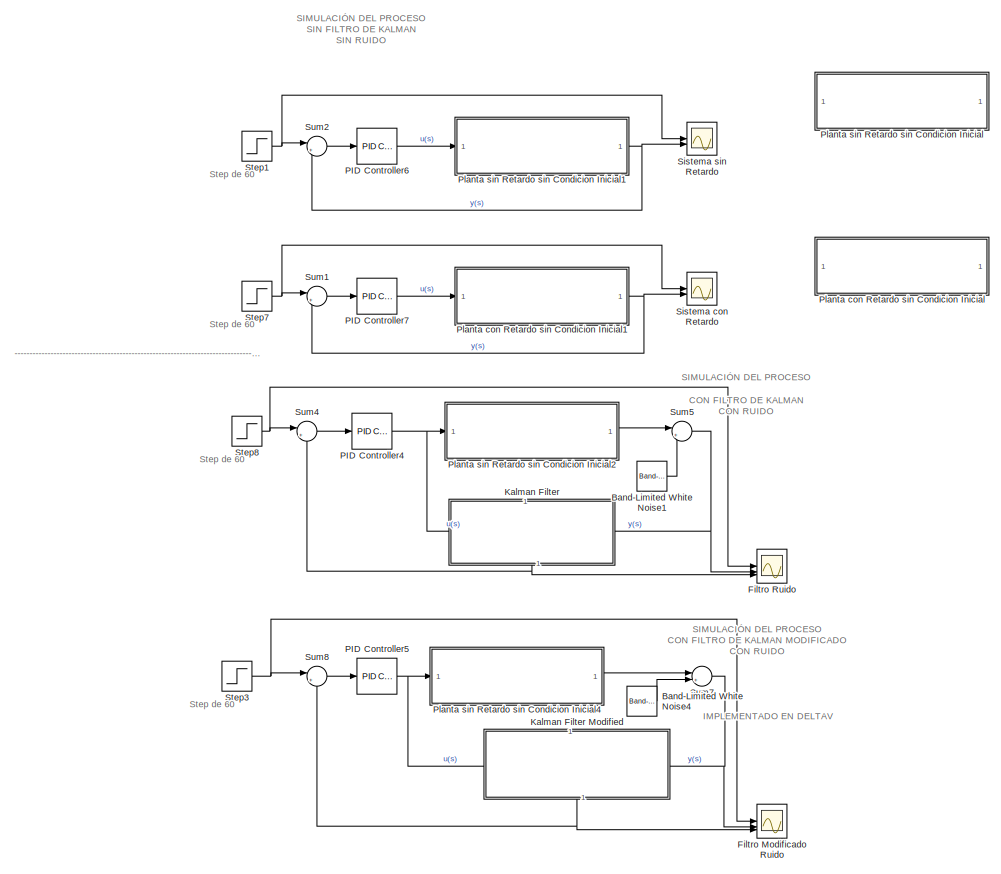
[diagram: root canvas - part 1/2, left side, full height]
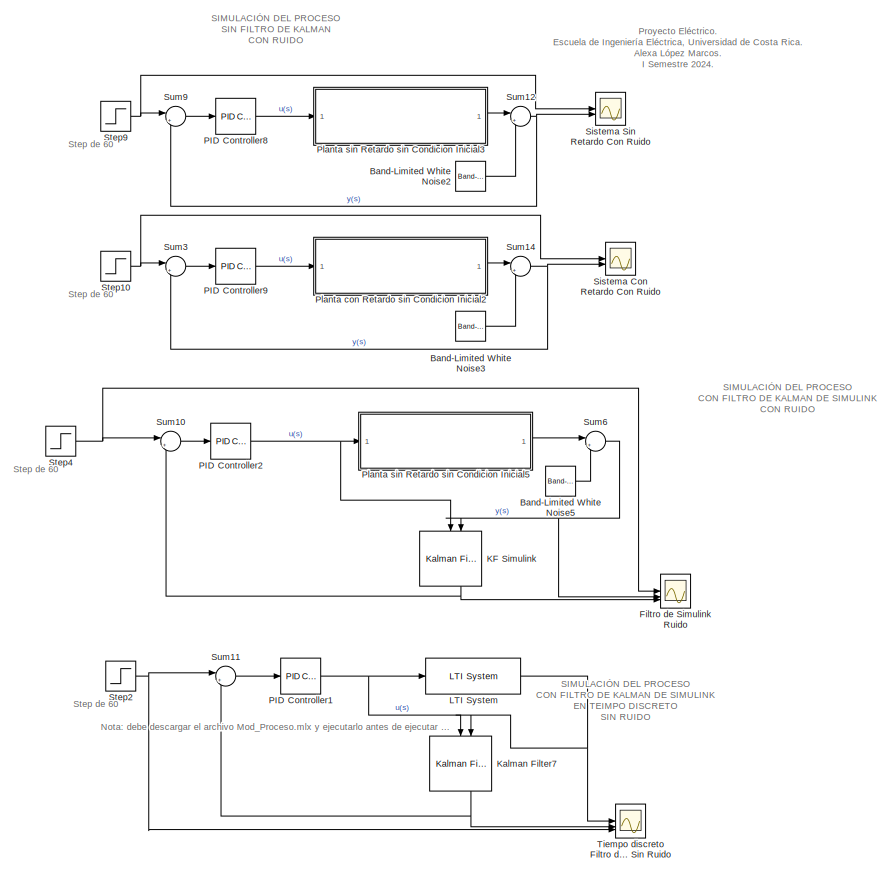
[diagram: root canvas - part 2/2, right side, full height]
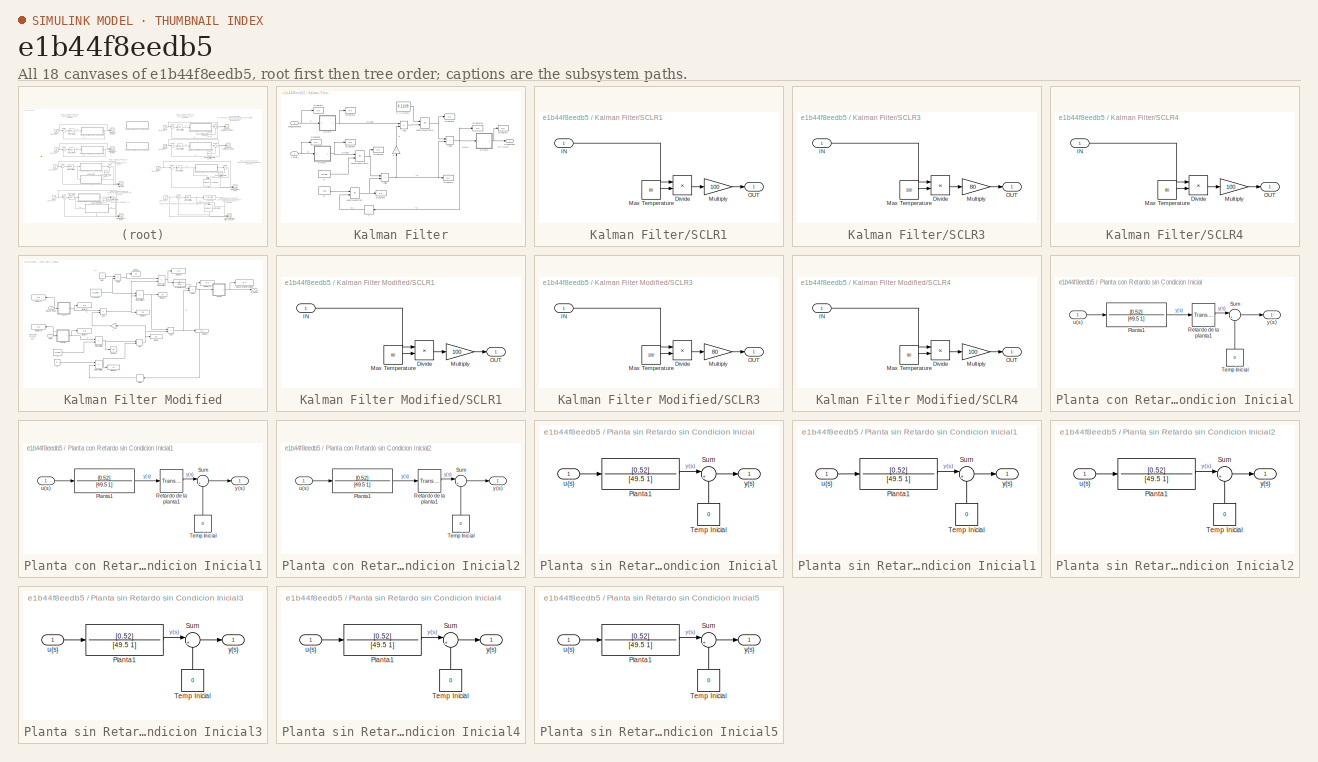
[diagram: thumbnail index - all 18 canvases of the model, root first then tree order]
MODEL slx_e1b44f8eedb5
KIND model
CONFIG AbsTol = auto
CONFIG EnableMultiTasking = off
CONFIG FixedStep = auto
CONFIG MaxStep = auto
CONFIG MinStep = auto
CONFIG RelTol = 1e-3
CONFIG SampleTimeConstraint = Unconstrained
CONFIG SolverName = VariableStepAuto
CONFIG StartTime = 0.0
CONFIG StopTime = 1080
BLOCK [Reference] Band-Limited White Noise1  REF=simulink/Sources/Band-Limited
White Noise
  SourceBlock = simulink/Sources/Band-Limited\nWhite Noise
  SourceType = Band-Limited White Noise.
BLOCK [Reference] Band-Limited White Noise2  REF=simulink/Sources/Band-Limited
White Noise
  SourceBlock = simulink/Sources/Band-Limited\nWhite Noise
  SourceType = Band-Limited White Noise.
BLOCK [Reference] Band-Limited White Noise3  REF=simulink/Sources/Band-Limited
White Noise
  SourceBlock = simulink/Sources/Band-Limited\nWhite Noise
  SourceType = Band-Limited White Noise.
BLOCK [Reference] Band-Limited White Noise4  REF=simulink/Sources/Band-Limited
White Noise
  SourceBlock = simulink/Sources/Band-Limited\nWhite Noise
  SourceType = Band-Limited White Noise.
BLOCK [Reference] Band-Limited White Noise5  REF=simulink/Sources/Band-Limited
White Noise
  SourceBlock = simulink/Sources/Band-Limited\nWhite Noise
  SourceType = Band-Limited White Noise.
BLOCK [Scope] Filtro Modificado Ruido
  Floating = off
  NumInputPorts = 3
  ScopeSpecificationString = Simulink.scopes.TimeScopeBlockCfg('CurrentConfiguration', extmgr.ConfigurationSet(extmgr.Configuration('Core','General UI',true,'FigureColor',[1 1 1]),extmgr.Configuration('Core','Source UI',true),extmgr.Configuration('Sources','WiredSimulink',true,'DataLoggingVariableName','ScopeData4'),extmgr.Configuration('Visuals','Time Domain',true,'SerializedDisplays',{struct('MinYLimReal','-11.81802','MaxYL...<+1864ch>
BLOCK [Scope] Filtro Ruido
  Floating = off
  NumInputPorts = 3
  ScopeSpecificationString = Simulink.scopes.TimeScopeBlockCfg('CurrentConfiguration', extmgr.ConfigurationSet(extmgr.Configuration('Core','General UI',true,'FigureColor',[1 1 1]),extmgr.Configuration('Core','Source UI',true),extmgr.Configuration('Sources','WiredSimulink',true),extmgr.Configuration('Visuals','Time Domain',true,'SerializedDisplays',{struct('MinYLimReal','-11.62962','MaxYLimReal','68.63877','YLabelReal','','Min...<+1803ch>
BLOCK [Scope] Filtro de Simulink Ruido
  Floating = off
  NumInputPorts = 3
  ScopeSpecificationString = Simulink.scopes.TimeScopeBlockCfg('CurrentConfiguration', extmgr.ConfigurationSet(extmgr.Configuration('Core','General UI',true,'FigureColor',[1 1 1]),extmgr.Configuration('Core','Source UI',true),extmgr.Configuration('Sources','WiredSimulink',true,'DataLoggingVariableName','ScopeData4'),extmgr.Configuration('Visuals','Time Domain',true,'SerializedDisplays',{struct('MinYLimReal','-13.6658','MaxYLi...<+1741ch>
BLOCK [Reference] KF Simulink  REF=ctrlSharedLib/Kalman Filter
  LibrarySourceBlock = cstblocks/State Estimation/Kalman Filter
  NameLocation = left
  SourceBlock = ctrlSharedLib/Kalman Filter
  SourceType = ctrlKalmanFilter
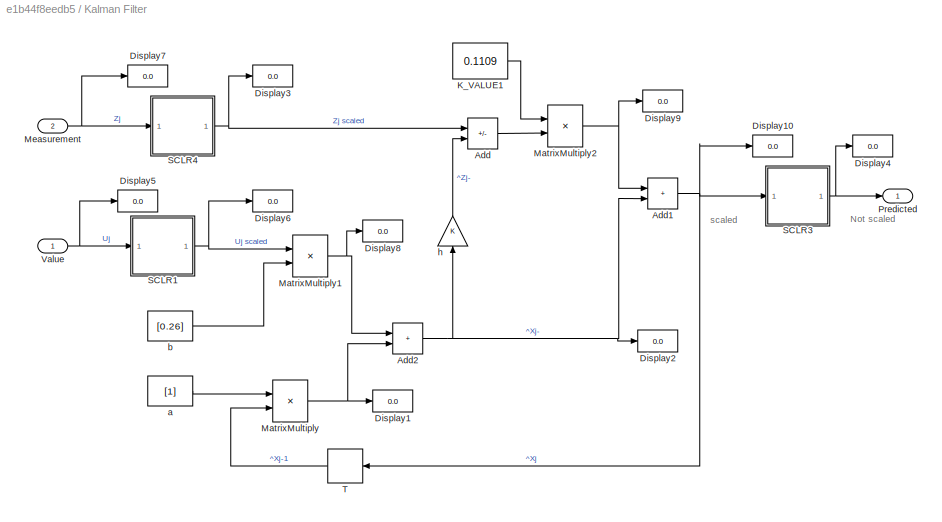
BLOCK [SubSystem] Kalman Filter
  NameLocation = left
  PortSchema = {"entries":[{"content":{"sides":[{"content":{},"type":"ConnectorPlacement.EquallySpacedRectSide","uuid":"d3a60f0c-3c6b-4e21-88ea-bc45be9027c1"},{"content":{"connectorIds":["Out1"],"side":"RIGHT"},"type":"ConnectorPlacement.EquallySpacedRectSide","uuid":"5ceb9a3c-e24d-4769-ae0e-5938e232892d"},{"content":{"connectorIds":["In1"],"side":"TOP"},"type":"ConnectorPlacement.EquallySpacedRectSide","uuid":"...<+372ch>
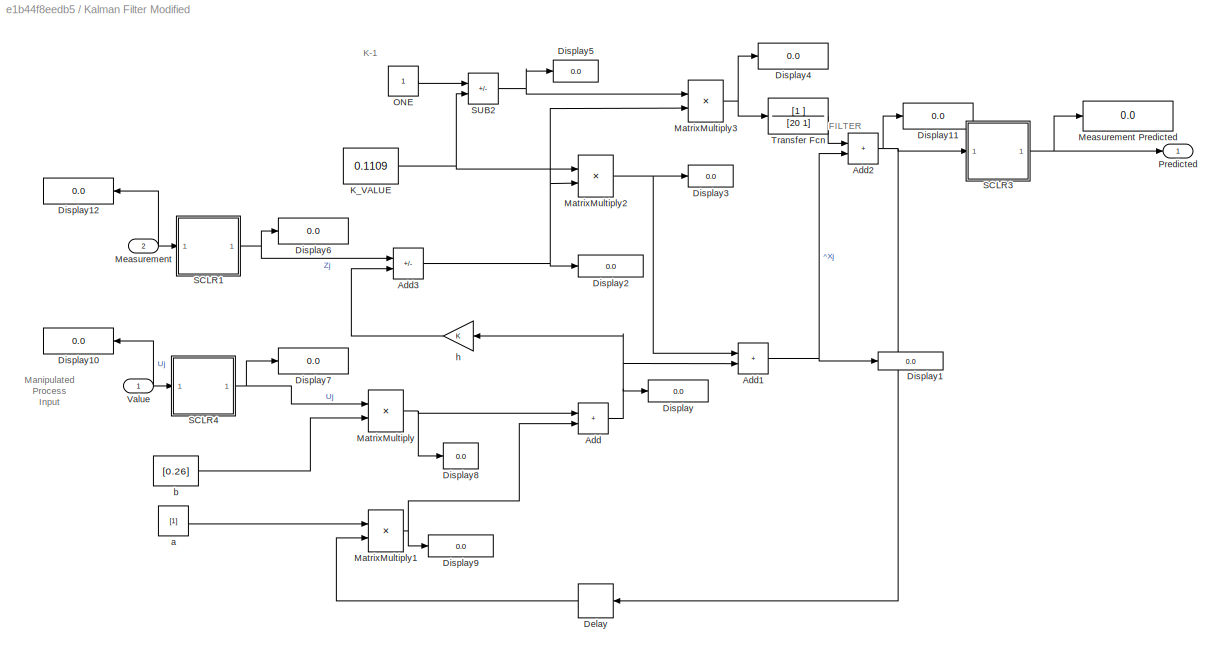
BLOCK [SubSystem] Kalman Filter Modified
  NameLocation = left
  PortSchema = {"entries":[{"content":{"sides":[{"content":{},"type":"ConnectorPlacement.EquallySpacedRectSide","uuid":"d3a60f0c-3c6b-4e21-88ea-bc45be9027c1"},{"content":{"connectorIds":["Out1"],"side":"RIGHT"},"type":"ConnectorPlacement.EquallySpacedRectSide","uuid":"5ceb9a3c-e24d-4769-ae0e-5938e232892d"},{"content":{"connectorIds":["In1"],"side":"TOP"},"type":"ConnectorPlacement.EquallySpacedRectSide","uuid":"...<+372ch>
BLOCK [Display] Kalman Filter Modified/ Measurement Predicted
  Decimation = 1
BLOCK [Sum] Kalman Filter Modified/Add
  IconShape = rectangular
BLOCK [Sum] Kalman Filter Modified/Add1
  IconShape = rectangular
BLOCK [Sum] Kalman Filter Modified/Add2
  IconShape = rectangular
BLOCK [Sum] Kalman Filter Modified/Add3
  IconShape = rectangular
  Inputs = +-
BLOCK [Delay] Kalman Filter Modified/Delay
  DelayLength = 1
  InputPortMap = u0
  NameLocation = top
BLOCK [Display] Kalman Filter Modified/Display
  Decimation = 1
BLOCK [Display] Kalman Filter Modified/Display1
  Decimation = 1
BLOCK [Display] Kalman Filter Modified/Display10
  Decimation = 1
  NameLocation = top
BLOCK [Display] Kalman Filter Modified/Display11
  Decimation = 1
BLOCK [Display] Kalman Filter Modified/Display12
  Decimation = 1
  NameLocation = top
BLOCK [Display] Kalman Filter Modified/Display2
  Decimation = 1
BLOCK [Display] Kalman Filter Modified/Display3
  Decimation = 1
BLOCK [Display] Kalman Filter Modified/Display4
  Decimation = 1
BLOCK [Display] Kalman Filter Modified/Display5
  Decimation = 1
BLOCK [Display] Kalman Filter Modified/Display6
  Decimation = 1
BLOCK [Display] Kalman Filter Modified/Display7
  Decimation = 1
BLOCK [Display] Kalman Filter Modified/Display8
  Decimation = 1
BLOCK [Display] Kalman Filter Modified/Display9
  Decimation = 1
BLOCK [Constant] Kalman Filter Modified/K_VALUE
  Value = 0.1109
BLOCK [Product] Kalman Filter Modified/MatrixMultiply
  Multiplication = Matrix(*)
BLOCK [Product] Kalman Filter Modified/MatrixMultiply1
  Multiplication = Matrix(*)
BLOCK [Product] Kalman Filter Modified/MatrixMultiply2
  Multiplication = Matrix(*)
BLOCK [Product] Kalman Filter Modified/MatrixMultiply3
  Multiplication = Matrix(*)
BLOCK [Inport] Kalman Filter Modified/Measurement
  Port = 2
BLOCK [Constant] Kalman Filter Modified/ONE
BLOCK [Outport] Kalman Filter Modified/Predicted
BLOCK [SubSystem] Kalman Filter Modified/SCLR1
BLOCK [Product] Kalman Filter Modified/SCLR1/Divide
  Inputs = */
BLOCK [Inport] Kalman Filter Modified/SCLR1/IN
BLOCK [Constant] Kalman Filter Modified/SCLR1/Max Temperature
  Value = 80
BLOCK [Gain] Kalman Filter Modified/SCLR1/Multiply
  Gain = 100
BLOCK [Outport] Kalman Filter Modified/SCLR1/OUT
BLOCK [SubSystem] Kalman Filter Modified/SCLR3
BLOCK [Product] Kalman Filter Modified/SCLR3/Divide
  Inputs = */
BLOCK [Inport] Kalman Filter Modified/SCLR3/IN
BLOCK [Constant] Kalman Filter Modified/SCLR3/Max Temperature
  Value = 100
BLOCK [Gain] Kalman Filter Modified/SCLR3/Multiply
  Gain = 80
BLOCK [Outport] Kalman Filter Modified/SCLR3/OUT
BLOCK [SubSystem] Kalman Filter Modified/SCLR4
BLOCK [Product] Kalman Filter Modified/SCLR4/Divide
  Inputs = */
BLOCK [Inport] Kalman Filter Modified/SCLR4/IN
BLOCK [Constant] Kalman Filter Modified/SCLR4/Max Temperature
  Value = 80
BLOCK [Gain] Kalman Filter Modified/SCLR4/Multiply
  Gain = 100
BLOCK [Outport] Kalman Filter Modified/SCLR4/OUT
BLOCK [Sum] Kalman Filter Modified/SUB2
  IconShape = rectangular
  Inputs = +-
BLOCK [TransferFcn] Kalman Filter Modified/Transfer Fcn
  Denominator = [20 1]
  Numerator = [1 ]
BLOCK [Inport] Kalman Filter Modified/Value
BLOCK [Constant] Kalman Filter Modified/a
  Value = [1]
BLOCK [Constant] Kalman Filter Modified/b
  Value = [0.26]
BLOCK [Gain] Kalman Filter Modified/h
  NameLocation = top
BLOCK [Sum] Kalman Filter/Add
  IconShape = rectangular
  Inputs = +-
BLOCK [Sum] Kalman Filter/Add1
  IconShape = rectangular
BLOCK [Sum] Kalman Filter/Add2
  IconShape = rectangular
BLOCK [Display] Kalman Filter/Display1
  Decimation = 1
BLOCK [Display] Kalman Filter/Display10
  Decimation = 1
BLOCK [Display] Kalman Filter/Display2
  Decimation = 1
BLOCK [Display] Kalman Filter/Display3
  Decimation = 1
BLOCK [Display] Kalman Filter/Display4
  Decimation = 1
BLOCK [Display] Kalman Filter/Display5
  Decimation = 1
BLOCK [Display] Kalman Filter/Display6
  Decimation = 1
BLOCK [Display] Kalman Filter/Display7
  Decimation = 1
BLOCK [Display] Kalman Filter/Display8
  Decimation = 1
BLOCK [Display] Kalman Filter/Display9
  Decimation = 1
BLOCK [Constant] Kalman Filter/K_VALUE1
  Value = 0.1109
BLOCK [Product] Kalman Filter/MatrixMultiply
  Multiplication = Matrix(*)
BLOCK [Product] Kalman Filter/MatrixMultiply1
  Multiplication = Matrix(*)
BLOCK [Product] Kalman Filter/MatrixMultiply2
  Multiplication = Matrix(*)
BLOCK [Inport] Kalman Filter/Measurement
  Port = 2
BLOCK [Outport] Kalman Filter/Predicted
BLOCK [SubSystem] Kalman Filter/SCLR1
BLOCK [Product] Kalman Filter/SCLR1/Divide
  Inputs = */
BLOCK [Inport] Kalman Filter/SCLR1/IN
BLOCK [Constant] Kalman Filter/SCLR1/Max Temperature
  Value = 80
BLOCK [Gain] Kalman Filter/SCLR1/Multiply
  Gain = 100
BLOCK [Outport] Kalman Filter/SCLR1/OUT
BLOCK [SubSystem] Kalman Filter/SCLR3
BLOCK [Product] Kalman Filter/SCLR3/Divide
  Inputs = */
BLOCK [Inport] Kalman Filter/SCLR3/IN
BLOCK [Constant] Kalman Filter/SCLR3/Max Temperature
  Value = 100
BLOCK [Gain] Kalman Filter/SCLR3/Multiply
  Gain = 80
BLOCK [Outport] Kalman Filter/SCLR3/OUT
BLOCK [SubSystem] Kalman Filter/SCLR4
BLOCK [Product] Kalman Filter/SCLR4/Divide
  Inputs = */
BLOCK [Inport] Kalman Filter/SCLR4/IN
BLOCK [Constant] Kalman Filter/SCLR4/Max Temperature
  Value = 80
BLOCK [Gain] Kalman Filter/SCLR4/Multiply
  Gain = 100
BLOCK [Outport] Kalman Filter/SCLR4/OUT
BLOCK [Delay] Kalman Filter/T
  DelayLength = 1
  InputPortMap = u0
  NameLocation = top
BLOCK [Inport] Kalman Filter/Value
BLOCK [Constant] Kalman Filter/a
  Value = [1]
BLOCK [Constant] Kalman Filter/b
  Value = [0.26]
BLOCK [Gain] Kalman Filter/h
  NameLocation = right
BLOCK [Reference] Kalman Filter7  REF=ctrlSharedLib/Kalman Filter
  Commented = on
  LibrarySourceBlock = cstblocks/State Estimation/Kalman Filter
  NameLocation = left
  SourceBlock = ctrlSharedLib/Kalman Filter
  SourceType = ctrlKalmanFilter
BLOCK [Reference] LTI System  REF=cstblocks/LTI System
  Commented = on
  SourceBlock = cstblocks/LTI System
  SourceType = LTI Block
BLOCK [Reference] PID Controller1  REF=slpidlib/PID Controller
  Commented = on
  LibrarySourceBlock = simulink/Continuous/PID Controller
  SourceBlock = slpidlib/PID Controller
  SourceType = PID 1dof
BLOCK [Reference] PID Controller2  REF=slpidlib/PID Controller
  LibrarySourceBlock = simulink/Continuous/PID Controller
  SourceBlock = slpidlib/PID Controller
  SourceType = PID 1dof
BLOCK [Reference] PID Controller4  REF=slpidlib/PID Controller
  LibrarySourceBlock = simulink/Continuous/PID Controller
  SourceBlock = slpidlib/PID Controller
  SourceType = PID 1dof
BLOCK [Reference] PID Controller5  REF=slpidlib/PID Controller
  LibrarySourceBlock = simulink/Continuous/PID Controller
  SourceBlock = slpidlib/PID Controller
  SourceType = PID 1dof
BLOCK [Reference] PID Controller6  REF=slpidlib/PID Controller
  LibrarySourceBlock = simulink/Continuous/PID Controller
  SourceBlock = slpidlib/PID Controller
  SourceType = PID 1dof
BLOCK [Reference] PID Controller7  REF=slpidlib/PID Controller
  LibrarySourceBlock = simulink/Continuous/PID Controller
  SourceBlock = slpidlib/PID Controller
  SourceType = PID 1dof
BLOCK [Reference] PID Controller8  REF=slpidlib/PID Controller
  LibrarySourceBlock = simulink/Continuous/PID Controller
  SourceBlock = slpidlib/PID Controller
  SourceType = PID 1dof
BLOCK [Reference] PID Controller9  REF=slpidlib/PID Controller
  LibrarySourceBlock = simulink/Continuous/PID Controller
  SourceBlock = slpidlib/PID Controller
  SourceType = PID 1dof
BLOCK [SubSystem] Planta con Retardo sin Condicion Inicial
BLOCK [TransferFcn] Planta con Retardo sin Condicion Inicial/Planta1
  Denominator = [49.5 1]
  Numerator = [0.52]
BLOCK [TransportDelay] Planta con Retardo sin Condicion Inicial/Retardo de la planta1
  DelayTime = 129
BLOCK [Sum] Planta con Retardo sin Condicion Inicial/Sum
  Inputs = |++
BLOCK [Constant] Planta con Retardo sin Condicion Inicial/Temp Inicial
  NameLocation = right
  Value = 0
BLOCK [Inport] Planta con Retardo sin Condicion Inicial/u(s)
BLOCK [Outport] Planta con Retardo sin Condicion Inicial/y(s)
  NameLocation = top
BLOCK [SubSystem] Planta con Retardo sin Condicion Inicial1
BLOCK [TransferFcn] Planta con Retardo sin Condicion Inicial1/Planta1
  Denominator = [49.5 1]
  Numerator = [0.52]
BLOCK [TransportDelay] Planta con Retardo sin Condicion Inicial1/Retardo de la planta1
  DelayTime = 129
BLOCK [Sum] Planta con Retardo sin Condicion Inicial1/Sum
  Inputs = |++
BLOCK [Constant] Planta con Retardo sin Condicion Inicial1/Temp Inicial
  NameLocation = right
  Value = 0
BLOCK [Inport] Planta con Retardo sin Condicion Inicial1/u(s)
BLOCK [Outport] Planta con Retardo sin Condicion Inicial1/y(s)
  NameLocation = top
BLOCK [SubSystem] Planta con Retardo sin Condicion Inicial2
BLOCK [TransferFcn] Planta con Retardo sin Condicion Inicial2/Planta1
  Denominator = [49.5 1]
  Numerator = [0.52]
BLOCK [TransportDelay] Planta con Retardo sin Condicion Inicial2/Retardo de la planta1
  DelayTime = 129
BLOCK [Sum] Planta con Retardo sin Condicion Inicial2/Sum
  Inputs = |++
BLOCK [Constant] Planta con Retardo sin Condicion Inicial2/Temp Inicial
  NameLocation = right
  Value = 0
BLOCK [Inport] Planta con Retardo sin Condicion Inicial2/u(s)
BLOCK [Outport] Planta con Retardo sin Condicion Inicial2/y(s)
  NameLocation = top
BLOCK [SubSystem] Planta sin Retardo sin Condicion Inicial
BLOCK [TransferFcn] Planta sin Retardo sin Condicion Inicial/Planta1
  Denominator = [49.5 1]
  Numerator = [0.52]
BLOCK [Sum] Planta sin Retardo sin Condicion Inicial/Sum
  Inputs = |++
BLOCK [Constant] Planta sin Retardo sin Condicion Inicial/Temp Inicial
  NameLocation = right
  Value = 0
BLOCK [Inport] Planta sin Retardo sin Condicion Inicial/u(s)
BLOCK [Outport] Planta sin Retardo sin Condicion Inicial/y(s)
  NameLocation = top
BLOCK [SubSystem] Planta sin Retardo sin Condicion Inicial1
BLOCK [TransferFcn] Planta sin Retardo sin Condicion Inicial1/Planta1
  Denominator = [49.5 1]
  Numerator = [0.52]
BLOCK [Sum] Planta sin Retardo sin Condicion Inicial1/Sum
  Inputs = |++
BLOCK [Constant] Planta sin Retardo sin Condicion Inicial1/Temp Inicial
  NameLocation = right
  Value = 0
BLOCK [Inport] Planta sin Retardo sin Condicion Inicial1/u(s)
BLOCK [Outport] Planta sin Retardo sin Condicion Inicial1/y(s)
  NameLocation = top
BLOCK [SubSystem] Planta sin Retardo sin Condicion Inicial2
BLOCK [TransferFcn] Planta sin Retardo sin Condicion Inicial2/Planta1
  Denominator = [49.5 1]
  Numerator = [0.52]
BLOCK [Sum] Planta sin Retardo sin Condicion Inicial2/Sum
  Inputs = |++
BLOCK [Constant] Planta sin Retardo sin Condicion Inicial2/Temp Inicial
  NameLocation = right
  Value = 0
BLOCK [Inport] Planta sin Retardo sin Condicion Inicial2/u(s)
BLOCK [Outport] Planta sin Retardo sin Condicion Inicial2/y(s)
  NameLocation = top
BLOCK [SubSystem] Planta sin Retardo sin Condicion Inicial3
BLOCK [TransferFcn] Planta sin Retardo sin Condicion Inicial3/Planta1
  Denominator = [49.5 1]
  Numerator = [0.52]
BLOCK [Sum] Planta sin Retardo sin Condicion Inicial3/Sum
  Inputs = |++
BLOCK [Constant] Planta sin Retardo sin Condicion Inicial3/Temp Inicial
  NameLocation = right
  Value = 0
BLOCK [Inport] Planta sin Retardo sin Condicion Inicial3/u(s)
BLOCK [Outport] Planta sin Retardo sin Condicion Inicial3/y(s)
  NameLocation = top
BLOCK [SubSystem] Planta sin Retardo sin Condicion Inicial4
BLOCK [TransferFcn] Planta sin Retardo sin Condicion Inicial4/Planta1
  Denominator = [49.5 1]
  Numerator = [0.52]
BLOCK [Sum] Planta sin Retardo sin Condicion Inicial4/Sum
  Inputs = |++
BLOCK [Constant] Planta sin Retardo sin Condicion Inicial4/Temp Inicial
  NameLocation = right
  Value = 0
BLOCK [Inport] Planta sin Retardo sin Condicion Inicial4/u(s)
BLOCK [Outport] Planta sin Retardo sin Condicion Inicial4/y(s)
  NameLocation = top
BLOCK [SubSystem] Planta sin Retardo sin Condicion Inicial5
BLOCK [TransferFcn] Planta sin Retardo sin Condicion Inicial5/Planta1
  Denominator = [49.5 1]
  Numerator = [0.52]
BLOCK [Sum] Planta sin Retardo sin Condicion Inicial5/Sum
  Inputs = |++
BLOCK [Constant] Planta sin Retardo sin Condicion Inicial5/Temp Inicial
  NameLocation = right
  Value = 0
BLOCK [Inport] Planta sin Retardo sin Condicion Inicial5/u(s)
BLOCK [Outport] Planta sin Retardo sin Condicion Inicial5/y(s)
  NameLocation = top
BLOCK [Scope] Sistema Con Retardo Con Ruido
  Floating = off
  NumInputPorts = 2
  ScopeSpecificationString = Simulink.scopes.TimeScopeBlockCfg('CurrentConfiguration', extmgr.ConfigurationSet(extmgr.Configuration('Core','General UI',true,'FigureColor',[1 1 1]),extmgr.Configuration('Core','Source UI',true),extmgr.Configuration('Sources','WiredSimulink',true,'DataLoggingVariableName','ScopeData6'),extmgr.Configuration('Visuals','Time Domain',true,'SerializedDisplays',{struct('MinYLimReal','-12.41225','MaxYL...<+1682ch>
BLOCK [Scope] Sistema Sin Retardo Con Ruido
  Floating = off
  NumInputPorts = 2
  ScopeSpecificationString = Simulink.scopes.TimeScopeBlockCfg('CurrentConfiguration', extmgr.ConfigurationSet(extmgr.Configuration('Core','General UI',true,'FigureColor',[1 1 1]),extmgr.Configuration('Core','Source UI',true),extmgr.Configuration('Sources','WiredSimulink',true,'DataLoggingVariableName','ScopeData7'),extmgr.Configuration('Visuals','Time Domain',true,'SerializedDisplays',{struct('MinYLimReal','-7.5','MaxYLimRea...<+1657ch>
BLOCK [Scope] Sistema con Retardo
  Floating = off
  NumInputPorts = 2
  ScopeSpecificationString = Simulink.scopes.TimeScopeBlockCfg('CurrentConfiguration', extmgr.ConfigurationSet(extmgr.Configuration('Core','General UI',true,'FigureColor',[1 1 1]),extmgr.Configuration('Core','Source UI',true),extmgr.Configuration('Sources','WiredSimulink',true,'DataLoggingVariableName','ScopeData5'),extmgr.Configuration('Visuals','Time Domain',true,'SerializedDisplays',{struct('MinYLimReal','-7.5','MaxYLimRea...<+1657ch>
BLOCK [Scope] Sistema sin Retardo
  Floating = off
  NumInputPorts = 2
  ScopeSpecificationString = Simulink.scopes.TimeScopeBlockCfg('CurrentConfiguration', extmgr.ConfigurationSet(extmgr.Configuration('Core','General UI',true,'FigureColor',[1 1 1]),extmgr.Configuration('Core','Source UI',true),extmgr.Configuration('Sources','WiredSimulink',true,'DataLoggingVariableName','ScopeData2'),extmgr.Configuration('Visuals','Time Domain',true,'SerializedDisplays',{struct('MinYLimReal','-7.5','MaxYLimRea...<+1681ch>
BLOCK [Step] Step1
  After = 60
  SampleTime = 0
  Time = 100
BLOCK [Step] Step10
  After = 60
  SampleTime = 0
  Time = 100
BLOCK [Step] Step2
  After = 60
  Commented = on
  SampleTime = 0
  Time = 100
BLOCK [Step] Step3
  After = 60
  SampleTime = 0
  Time = 100
BLOCK [Step] Step4
  After = 60
  SampleTime = 0
  Time = 100
BLOCK [Step] Step7
  After = 60
  SampleTime = 0
  Time = 100
BLOCK [Step] Step8
  After = 60
  SampleTime = 0
  Time = 100
BLOCK [Step] Step9
  After = 60
  SampleTime = 0
  Time = 100
BLOCK [Sum] Sum1
  Inputs = |+-
BLOCK [Sum] Sum10
  Inputs = |+-
BLOCK [Sum] Sum11
  Commented = on
  Inputs = |+-
BLOCK [Sum] Sum12
  Inputs = |++
BLOCK [Sum] Sum14
  Inputs = |++
BLOCK [Sum] Sum2
  Inputs = |+-
BLOCK [Sum] Sum3
  Inputs = |+-
BLOCK [Sum] Sum4
  Inputs = |+-
BLOCK [Sum] Sum5
  Inputs = |++
BLOCK [Sum] Sum6
  Inputs = |++
BLOCK [Sum] Sum7
  Inputs = |++
BLOCK [Sum] Sum8
  Inputs = |+-
BLOCK [Sum] Sum9
  Inputs = |+-
BLOCK [Scope] Tiempo discreto Filtro de Simulink Sin Ruido
  Commented = on
  Floating = off
  NumInputPorts = 3
  ScopeSpecificationString = Simulink.scopes.TimeScopeBlockCfg('CurrentConfiguration', extmgr.ConfigurationSet(extmgr.Configuration('Core','General UI',true,'FigureColor',[1 1 1]),extmgr.Configuration('Core','Source UI',true),extmgr.Configuration('Sources','WiredSimulink',true,'DataLoggingVariableName','ScopeData2'),extmgr.Configuration('Visuals','Time Domain',true,'SerializedDisplays',{struct('MinYLimReal','-7.5','MaxYLimRea...<+1726ch>
ANNOTATION (root): IMPLEMENTADO EN DELTAV
ANNOTATION (root): SIMULACIÓN DEL PROCESO CON FILTRO DE KALMAN DE SIMULINK CON RUIDO
ANNOTATION (root): SIMULACIÓN DEL PROCESO CON FILTRO DE KALMAN DE SIMULINK EN TEIMPO DISCRETO SIN RUIDO
ANNOTATION (root): SIMULACIÓN DEL PROCESO CON FILTRO DE KALMAN MODIFICADO CON RUIDO
ANNOTATION (root): SIMULACIÓN DEL PROCESO CON FILTRO DE KALMAN CON RUIDO
ANNOTATION (root): SIMULACIÓN DEL PROCESO SIN FILTRO DE KALMAN CON RUIDO
ANNOTATION (root): SIMULACIÓN DEL PROCESO SIN FILTRO DE KALMAN SIN RUIDO
ANNOTATION (root): ----------------------------------------------------------------------------------------------------------------------------------------------------------------------------------------------------------------------------------------
ANNOTATION (root): Proyecto Eléctrico. Escuela de Ingeniería Eléctrica, Universidad de Costa Rica. Alexa López Marcos. I Semestre 2024.
ANNOTATION (root): Nota: debe descargar el archivo Mod_Proceso.mlx y ejecutarlo antes de ejecutar esta simulacion
ANNOTATION (root): Step de 60
ANNOTATION Kalman Filter: Not scaled
ANNOTATION Kalman Filter: scaled
ANNOTATION Kalman Filter Modified: FILTER
ANNOTATION Kalman Filter Modified: K-1
ANNOTATION Kalman Filter Modified: Manipulated Process Input
LINE Band-Limited White Noise1:1 -> Sum5:2
LINE Band-Limited White Noise2:1 -> Sum12:2
LINE Band-Limited White Noise3:1 -> Sum14:2
LINE Band-Limited White Noise4:1 -> Sum7:2
LINE Band-Limited White Noise5:1 -> Sum6:2
NET KF Simulink:2 -> Filtro de Simulink Ruido:3, Sum10:2
NET Kalman Filter Modified/Add1:1 -> Kalman Filter Modified/Add2:2, Kalman Filter Modified/Display1:1
NET Kalman Filter Modified/Add2:1 -> Kalman Filter Modified/Delay:1, Kalman Filter Modified/Display11:1, Kalman Filter Modified/SCLR3:1
NET Kalman Filter Modified/Add3:1 -> Kalman Filter Modified/Display2:1, Kalman Filter Modified/MatrixMultiply2:2, Kalman Filter Modified/MatrixMultiply3:2
NET Kalman Filter Modified/Add:1 -> Kalman Filter Modified/Add1:2, Kalman Filter Modified/Display:1, Kalman Filter Modified/h:1
LINE Kalman Filter Modified/Delay:1 -> Kalman Filter Modified/MatrixMultiply1:2
NET Kalman Filter Modified/K_VALUE:1 -> Kalman Filter Modified/MatrixMultiply2:1, Kalman Filter Modified/SUB2:2
NET Kalman Filter Modified/MatrixMultiply1:1 -> Kalman Filter Modified/Add:2, Kalman Filter Modified/Display9:1
NET Kalman Filter Modified/MatrixMultiply2:1 -> Kalman Filter Modified/Add1:1, Kalman Filter Modified/Display3:1
NET Kalman Filter Modified/MatrixMultiply3:1 -> Kalman Filter Modified/Display4:1, Kalman Filter Modified/Transfer Fcn:1
NET Kalman Filter Modified/MatrixMultiply:1 -> Kalman Filter Modified/Add:1, Kalman Filter Modified/Display8:1
NET Kalman Filter Modified/Measurement:1 -> Kalman Filter Modified/Display12:1, Kalman Filter Modified/SCLR1:1
LINE Kalman Filter Modified/ONE:1 -> Kalman Filter Modified/SUB2:1
LINE Kalman Filter Modified/SCLR1/Divide:1 -> Kalman Filter Modified/SCLR1/Multiply:1
LINE Kalman Filter Modified/SCLR1/IN:1 -> Kalman Filter Modified/SCLR1/Divide:1
LINE Kalman Filter Modified/SCLR1/Max Temperature:1 -> Kalman Filter Modified/SCLR1/Divide:2
LINE Kalman Filter Modified/SCLR1/Multiply:1 -> Kalman Filter Modified/SCLR1/OUT:1
NET Kalman Filter Modified/SCLR1:1 -> Kalman Filter Modified/Add3:1, Kalman Filter Modified/Display6:1
LINE Kalman Filter Modified/SCLR3/Divide:1 -> Kalman Filter Modified/SCLR3/Multiply:1
LINE Kalman Filter Modified/SCLR3/IN:1 -> Kalman Filter Modified/SCLR3/Divide:1
LINE Kalman Filter Modified/SCLR3/Max Temperature:1 -> Kalman Filter Modified/SCLR3/Divide:2
LINE Kalman Filter Modified/SCLR3/Multiply:1 -> Kalman Filter Modified/SCLR3/OUT:1
NET Kalman Filter Modified/SCLR3:1 -> Kalman Filter Modified/ Measurement Predicted:1, Kalman Filter Modified/Predicted:1
LINE Kalman Filter Modified/SCLR4/Divide:1 -> Kalman Filter Modified/SCLR4/Multiply:1
LINE Kalman Filter Modified/SCLR4/IN:1 -> Kalman Filter Modified/SCLR4/Divide:1
LINE Kalman Filter Modified/SCLR4/Max Temperature:1 -> Kalman Filter Modified/SCLR4/Divide:2
LINE Kalman Filter Modified/SCLR4/Multiply:1 -> Kalman Filter Modified/SCLR4/OUT:1
NET Kalman Filter Modified/SCLR4:1 -> Kalman Filter Modified/Display7:1, Kalman Filter Modified/MatrixMultiply:1
NET Kalman Filter Modified/SUB2:1 -> Kalman Filter Modified/Display5:1, Kalman Filter Modified/MatrixMultiply3:1
LINE Kalman Filter Modified/Transfer Fcn:1 -> Kalman Filter Modified/Add2:1
NET Kalman Filter Modified/Value:1 -> Kalman Filter Modified/Display10:1, Kalman Filter Modified/SCLR4:1
LINE Kalman Filter Modified/a:1 -> Kalman Filter Modified/MatrixMultiply1:1
LINE Kalman Filter Modified/b:1 -> Kalman Filter Modified/MatrixMultiply:2
LINE Kalman Filter Modified/h:1 -> Kalman Filter Modified/Add3:2
NET Kalman Filter Modified:1 -> Filtro Modificado Ruido:3, Sum8:2
NET Kalman Filter/Add1:1 -> Kalman Filter/Display10:1, Kalman Filter/SCLR3:1, Kalman Filter/T:1
NET Kalman Filter/Add2:1 -> Kalman Filter/Add1:2, Kalman Filter/Display2:1, Kalman Filter/h:1
LINE Kalman Filter/Add:1 -> Kalman Filter/MatrixMultiply2:2
LINE Kalman Filter/K_VALUE1:1 -> Kalman Filter/MatrixMultiply2:1
NET Kalman Filter/MatrixMultiply1:1 -> Kalman Filter/Add2:1, Kalman Filter/Display8:1
NET Kalman Filter/MatrixMultiply2:1 -> Kalman Filter/Add1:1, Kalman Filter/Display9:1
NET Kalman Filter/MatrixMultiply:1 -> Kalman Filter/Add2:2, Kalman Filter/Display1:1
NET Kalman Filter/Measurement:1 -> Kalman Filter/Display7:1, Kalman Filter/SCLR4:1
LINE Kalman Filter/SCLR1/Divide:1 -> Kalman Filter/SCLR1/Multiply:1
LINE Kalman Filter/SCLR1/IN:1 -> Kalman Filter/SCLR1/Divide:1
LINE Kalman Filter/SCLR1/Max Temperature:1 -> Kalman Filter/SCLR1/Divide:2
LINE Kalman Filter/SCLR1/Multiply:1 -> Kalman Filter/SCLR1/OUT:1
NET Kalman Filter/SCLR1:1 -> Kalman Filter/Display6:1, Kalman Filter/MatrixMultiply1:1
LINE Kalman Filter/SCLR3/Divide:1 -> Kalman Filter/SCLR3/Multiply:1
LINE Kalman Filter/SCLR3/IN:1 -> Kalman Filter/SCLR3/Divide:1
LINE Kalman Filter/SCLR3/Max Temperature:1 -> Kalman Filter/SCLR3/Divide:2
LINE Kalman Filter/SCLR3/Multiply:1 -> Kalman Filter/SCLR3/OUT:1
NET Kalman Filter/SCLR3:1 -> Kalman Filter/Display4:1, Kalman Filter/Predicted:1
LINE Kalman Filter/SCLR4/Divide:1 -> Kalman Filter/SCLR4/Multiply:1
LINE Kalman Filter/SCLR4/IN:1 -> Kalman Filter/SCLR4/Divide:1
LINE Kalman Filter/SCLR4/Max Temperature:1 -> Kalman Filter/SCLR4/Divide:2
LINE Kalman Filter/SCLR4/Multiply:1 -> Kalman Filter/SCLR4/OUT:1
NET Kalman Filter/SCLR4:1 -> Kalman Filter/Add:1, Kalman Filter/Display3:1
LINE Kalman Filter/T:1 -> Kalman Filter/MatrixMultiply:2
NET Kalman Filter/Value:1 -> Kalman Filter/Display5:1, Kalman Filter/SCLR1:1
LINE Kalman Filter/a:1 -> Kalman Filter/MatrixMultiply:1
LINE Kalman Filter/b:1 -> Kalman Filter/MatrixMultiply1:2
LINE Kalman Filter/h:1 -> Kalman Filter/Add:2
NET Kalman Filter7:2 -> Sum11:2, Tiempo discreto Filtro de Simulink Sin Ruido:2
NET Kalman Filter:1 -> Filtro Ruido:3, Sum4:2
NET LTI System:1 -> Kalman Filter7:2, Tiempo discreto Filtro de Simulink Sin Ruido:1
NET PID Controller1:1 -> Kalman Filter7:1, LTI System:1
NET PID Controller2:1 -> KF Simulink:1, Planta sin Retardo sin Condicion Inicial5:1
NET PID Controller4:1 -> Kalman Filter:1, Planta sin Retardo sin Condicion Inicial2:1
NET PID Controller5:1 -> Kalman Filter Modified:1, Planta sin Retardo sin Condicion Inicial4:1
LINE PID Controller6:1 -> Planta sin Retardo sin Condicion Inicial1:1
LINE PID Controller7:1 -> Planta con Retardo sin Condicion Inicial1:1
LINE PID Controller8:1 -> Planta sin Retardo sin Condicion Inicial3:1
LINE PID Controller9:1 -> Planta con Retardo sin Condicion Inicial2:1
LINE Planta con Retardo sin Condicion Inicial/Planta1:1 -> Planta con Retardo sin Condicion Inicial/Retardo de la planta1:1
LINE Planta con Retardo sin Condicion Inicial/Retardo de la planta1:1 -> Planta con Retardo sin Condicion Inicial/Sum:1
LINE Planta con Retardo sin Condicion Inicial/Sum:1 -> Planta con Retardo sin Condicion Inicial/y(s):1
LINE Planta con Retardo sin Condicion Inicial/Temp Inicial:1 -> Planta con Retardo sin Condicion Inicial/Sum:2
LINE Planta con Retardo sin Condicion Inicial/u(s):1 -> Planta con Retardo sin Condicion Inicial/Planta1:1
LINE Planta con Retardo sin Condicion Inicial1/Planta1:1 -> Planta con Retardo sin Condicion Inicial1/Retardo de la planta1:1
LINE Planta con Retardo sin Condicion Inicial1/Retardo de la planta1:1 -> Planta con Retardo sin Condicion Inicial1/Sum:1
LINE Planta con Retardo sin Condicion Inicial1/Sum:1 -> Planta con Retardo sin Condicion Inicial1/y(s):1
LINE Planta con Retardo sin Condicion Inicial1/Temp Inicial:1 -> Planta con Retardo sin Condicion Inicial1/Sum:2
LINE Planta con Retardo sin Condicion Inicial1/u(s):1 -> Planta con Retardo sin Condicion Inicial1/Planta1:1
NET Planta con Retardo sin Condicion Inicial1:1 -> Sistema con Retardo:2, Sum1:2
LINE Planta con Retardo sin Condicion Inicial2/Planta1:1 -> Planta con Retardo sin Condicion Inicial2/Retardo de la planta1:1
LINE Planta con Retardo sin Condicion Inicial2/Retardo de la planta1:1 -> Planta con Retardo sin Condicion Inicial2/Sum:1
LINE Planta con Retardo sin Condicion Inicial2/Sum:1 -> Planta con Retardo sin Condicion Inicial2/y(s):1
LINE Planta con Retardo sin Condicion Inicial2/Temp Inicial:1 -> Planta con Retardo sin Condicion Inicial2/Sum:2
LINE Planta con Retardo sin Condicion Inicial2/u(s):1 -> Planta con Retardo sin Condicion Inicial2/Planta1:1
LINE Planta con Retardo sin Condicion Inicial2:1 -> Sum14:1
LINE Planta sin Retardo sin Condicion Inicial/Planta1:1 -> Planta sin Retardo sin Condicion Inicial/Sum:1
LINE Planta sin Retardo sin Condicion Inicial/Sum:1 -> Planta sin Retardo sin Condicion Inicial/y(s):1
LINE Planta sin Retardo sin Condicion Inicial/Temp Inicial:1 -> Planta sin Retardo sin Condicion Inicial/Sum:2
LINE Planta sin Retardo sin Condicion Inicial/u(s):1 -> Planta sin Retardo sin Condicion Inicial/Planta1:1
LINE Planta sin Retardo sin Condicion Inicial1/Planta1:1 -> Planta sin Retardo sin Condicion Inicial1/Sum:1
LINE Planta sin Retardo sin Condicion Inicial1/Sum:1 -> Planta sin Retardo sin Condicion Inicial1/y(s):1
LINE Planta sin Retardo sin Condicion Inicial1/Temp Inicial:1 -> Planta sin Retardo sin Condicion Inicial1/Sum:2
LINE Planta sin Retardo sin Condicion Inicial1/u(s):1 -> Planta sin Retardo sin Condicion Inicial1/Planta1:1
NET Planta sin Retardo sin Condicion Inicial1:1 -> Sistema sin Retardo:2, Sum2:2
LINE Planta sin Retardo sin Condicion Inicial2/Planta1:1 -> Planta sin Retardo sin Condicion Inicial2/Sum:1
LINE Planta sin Retardo sin Condicion Inicial2/Sum:1 -> Planta sin Retardo sin Condicion Inicial2/y(s):1
LINE Planta sin Retardo sin Condicion Inicial2/Temp Inicial:1 -> Planta sin Retardo sin Condicion Inicial2/Sum:2
LINE Planta sin Retardo sin Condicion Inicial2/u(s):1 -> Planta sin Retardo sin Condicion Inicial2/Planta1:1
LINE Planta sin Retardo sin Condicion Inicial2:1 -> Sum5:1
LINE Planta sin Retardo sin Condicion Inicial3/Planta1:1 -> Planta sin Retardo sin Condicion Inicial3/Sum:1
LINE Planta sin Retardo sin Condicion Inicial3/Sum:1 -> Planta sin Retardo sin Condicion Inicial3/y(s):1
LINE Planta sin Retardo sin Condicion Inicial3/Temp Inicial:1 -> Planta sin Retardo sin Condicion Inicial3/Sum:2
LINE Planta sin Retardo sin Condicion Inicial3/u(s):1 -> Planta sin Retardo sin Condicion Inicial3/Planta1:1
LINE Planta sin Retardo sin Condicion Inicial3:1 -> Sum12:1
LINE Planta sin Retardo sin Condicion Inicial4/Planta1:1 -> Planta sin Retardo sin Condicion Inicial4/Sum:1
LINE Planta sin Retardo sin Condicion Inicial4/Sum:1 -> Planta sin Retardo sin Condicion Inicial4/y(s):1
LINE Planta sin Retardo sin Condicion Inicial4/Temp Inicial:1 -> Planta sin Retardo sin Condicion Inicial4/Sum:2
LINE Planta sin Retardo sin Condicion Inicial4/u(s):1 -> Planta sin Retardo sin Condicion Inicial4/Planta1:1
LINE Planta sin Retardo sin Condicion Inicial4:1 -> Sum7:1
LINE Planta sin Retardo sin Condicion Inicial5/Planta1:1 -> Planta sin Retardo sin Condicion Inicial5/Sum:1
LINE Planta sin Retardo sin Condicion Inicial5/Sum:1 -> Planta sin Retardo sin Condicion Inicial5/y(s):1
LINE Planta sin Retardo sin Condicion Inicial5/Temp Inicial:1 -> Planta sin Retardo sin Condicion Inicial5/Sum:2
LINE Planta sin Retardo sin Condicion Inicial5/u(s):1 -> Planta sin Retardo sin Condicion Inicial5/Planta1:1
LINE Planta sin Retardo sin Condicion Inicial5:1 -> Sum6:1
NET Step10:1 -> Sistema Con Retardo Con Ruido:1, Sum3:1
NET Step1:1 -> Sistema sin Retardo:1, Sum2:1
NET Step2:1 -> Sum11:1, Tiempo discreto Filtro de Simulink Sin Ruido:3
NET Step3:1 -> Filtro Modificado Ruido:1, Sum8:1
NET Step4:1 -> Filtro de Simulink Ruido:1, Sum10:1
NET Step7:1 -> Sistema con Retardo:1, Sum1:1
NET Step8:1 -> Filtro Ruido:1, Sum4:1
NET Step9:1 -> Sistema Sin Retardo Con Ruido:1, Sum9:1
LINE Sum10:1 -> PID Controller2:1
LINE Sum11:1 -> PID Controller1:1
NET Sum12:1 -> Sistema Sin Retardo Con Ruido:2, Sum9:2
NET Sum14:1 -> Sistema Con Retardo Con Ruido:2, Sum3:2
LINE Sum1:1 -> PID Controller7:1
LINE Sum2:1 -> PID Controller6:1
LINE Sum3:1 -> PID Controller9:1
LINE Sum4:1 -> PID Controller4:1
NET Sum5:1 -> Filtro Ruido:2, Kalman Filter:2
NET Sum6:1 -> Filtro de Simulink Ruido:2, KF Simulink:2
NET Sum7:1 -> Filtro Modificado Ruido:2, Kalman Filter Modified:2
LINE Sum8:1 -> PID Controller5:1
LINE Sum9:1 -> PID Controller8:1
note: NET lines group one-source signal fan-out (src -> all destinations, sorted); 1:1 wires keep LINE
